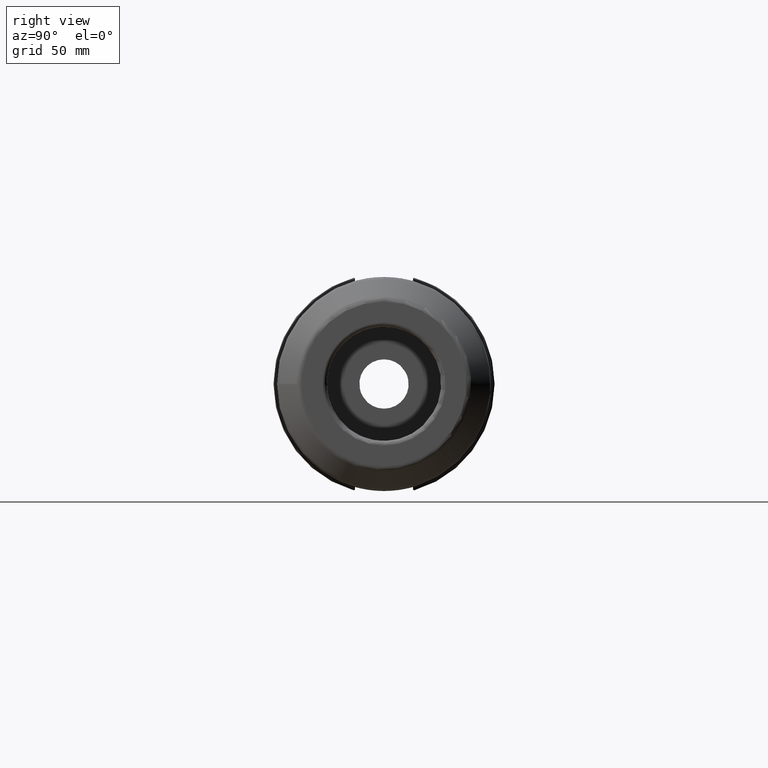
[diagram: clean part render]
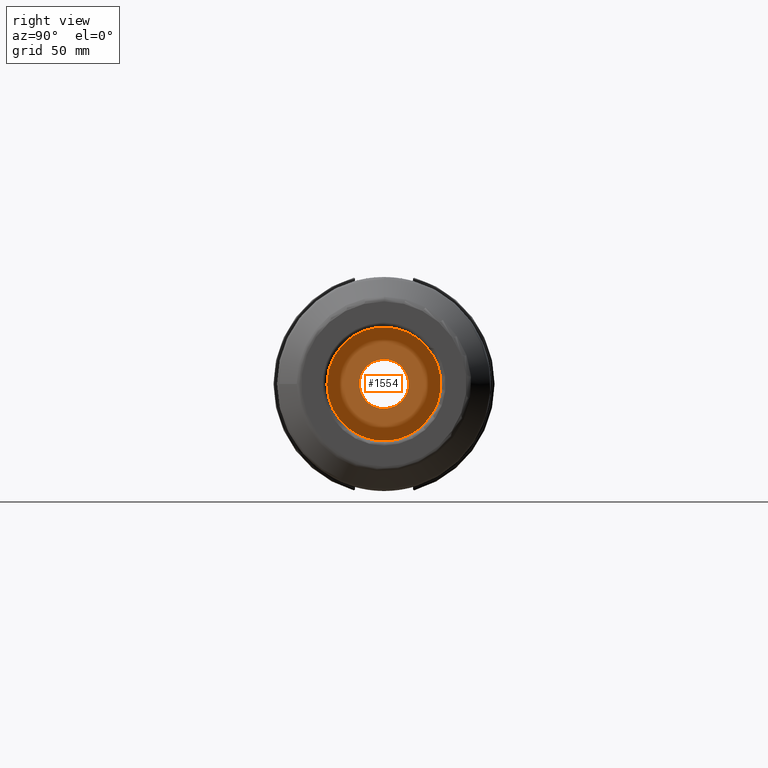
[diagram: same view with one face highlighted and labeled with its STEP entity id]
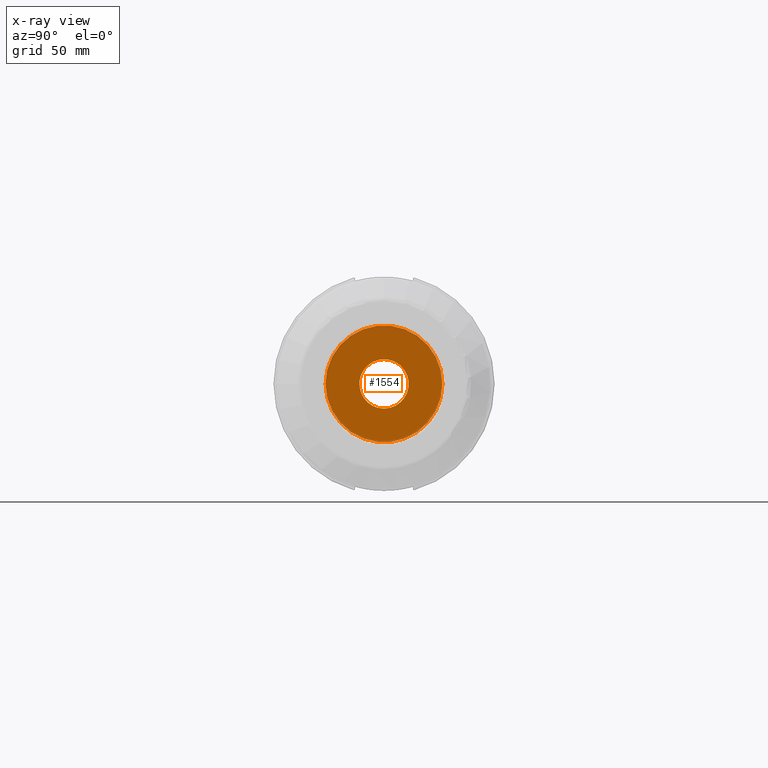
[diagram: x-ray of the same camera — body ghosted, the highlighted face saturated]
A machine part, right view. The second image highlights one B-rep face of the part: STEP entity #1554.
The next image is the same camera in x-ray: the body ghosted, the highlighted face saturated — about 6% of this face is hidden behind the body in this view.
In plain terms, the highlighted planar face has unit normal (-1, 0, 0).
Its self-contained STEP definition (entity closure, byte-faithful):
#51=PLANE('',#1693);
#89=FACE_BOUND('',#421,.T.);
#327=FACE_OUTER_BOUND('',#420,.T.);
#420=EDGE_LOOP('',(#1154));
#421=EDGE_LOOP('',(#1155));
#528=CIRCLE('',#1684,26.);
#532=CIRCLE('',#1691,10.9855);
#680=VERTEX_POINT('',#2605);
#683=VERTEX_POINT('',#2618);
#857=EDGE_CURVE('',#680,#680,#528,.T.);
#864=EDGE_CURVE('',#683,#683,#532,.T.);
#1154=ORIENTED_EDGE('',*,*,#857,.F.);
#1155=ORIENTED_EDGE('',*,*,#864,.T.);
#1554=ADVANCED_FACE('',(#327,#89),#51,.F.);
#1684=AXIS2_PLACEMENT_3D('',#2607,#1911,#1912);
#1691=AXIS2_PLACEMENT_3D('',#2620,#1928,#1929);
#1693=AXIS2_PLACEMENT_3D('',#2698,#1932,#1933);
#1911=DIRECTION('center_axis',(-1.,0.,0.));
#1912=DIRECTION('ref_axis',(0.,0.,1.));
#1928=DIRECTION('center_axis',(-1.,0.,0.));
#1929=DIRECTION('ref_axis',(0.,0.,1.));
#1932=DIRECTION('center_axis',(-1.,0.,0.));
#1933=DIRECTION('ref_axis',(0.,0.,1.));
#2605=CARTESIAN_POINT('',(66.8,-26.,3.18408167778312E-15));
#2607=CARTESIAN_POINT('Origin',(66.8,0.,0.));
#2618=CARTESIAN_POINT('',(66.8,-1.34533574120333E-15,-10.9855));
#2620=CARTESIAN_POINT('Origin',(66.8,0.,0.));
#2698=CARTESIAN_POINT('Origin',(66.8,0.,0.));